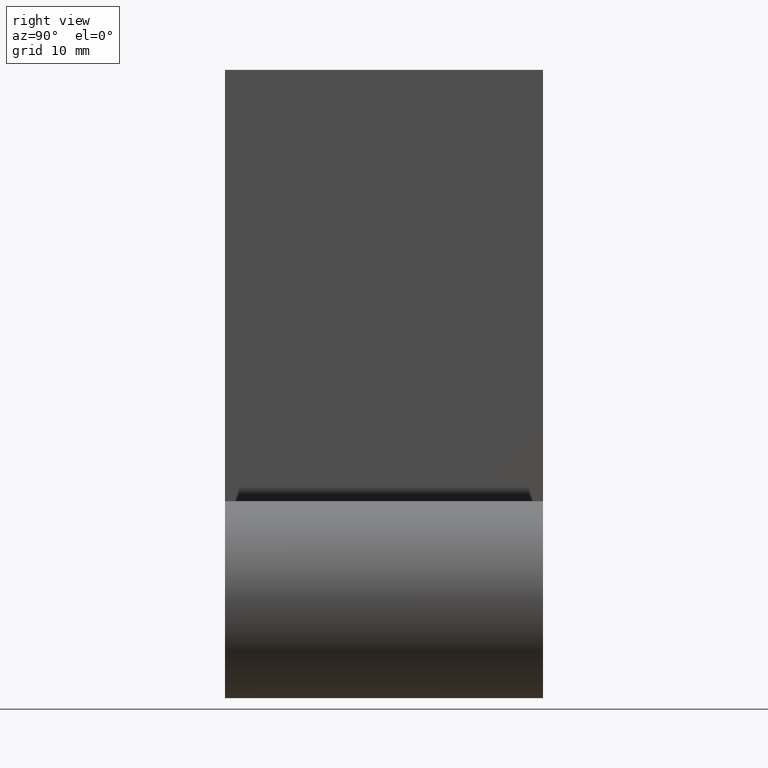
[diagram: clean part render]
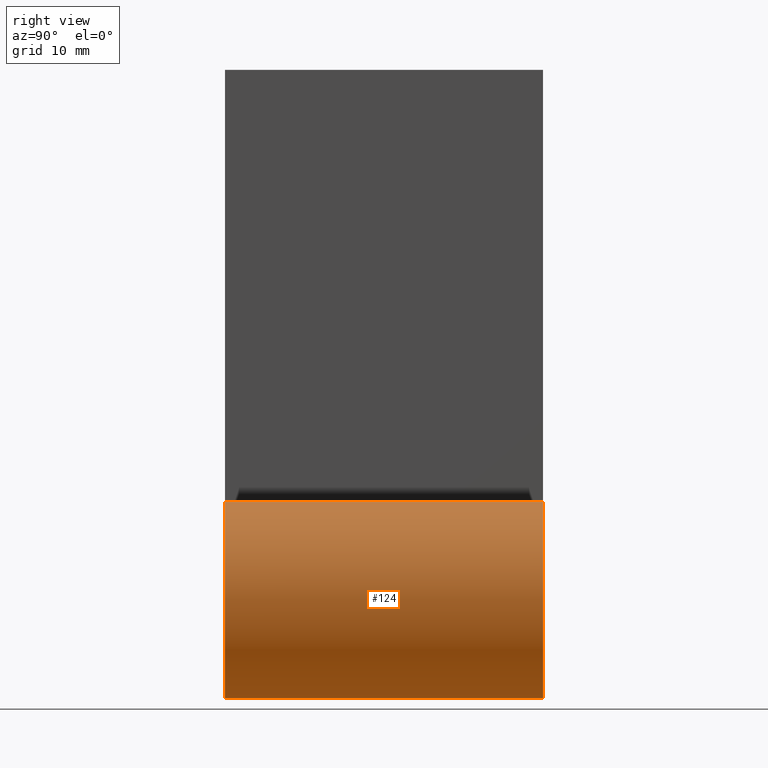
[diagram: same view with one face highlighted and labeled with its STEP entity id]
A machine part, right view. The second image highlights one B-rep face of the part: STEP entity #124.
In plain terms, the highlighted cylindrical surface (partial cylindrical patch) has radius 14 mm, axis along (-0, -1, -0).
Its self-contained STEP definition (entity closure, byte-faithful):
#124 = ADVANCED_FACE ( 'NONE', ( #1636 ), #8150, .T. ) ;
#289 = ORIENTED_EDGE ( 'NONE', *, *, #4904, .F. ) ;
#753 = DIRECTION ( 'NONE',  ( -0.000000000000000000, -1.000000000000000000, -0.000000000000000000 ) ) ;
#943 = VERTEX_POINT ( 'NONE', #2938 ) ;
#1138 = CARTESIAN_POINT ( 'NONE',  ( -7.500000000000000000, 22.50000000000000000, 11.82159041753688911 ) ) ;
#1636 = FACE_OUTER_BOUND ( 'NONE', #7451, .T. ) ;
#1658 = CARTESIAN_POINT ( 'NONE',  ( 8.673617379884035472E-15, 22.50000000000000000, 0.000000000000000000 ) ) ;
#1827 = AXIS2_PLACEMENT_3D ( 'NONE', #5263, #9525, #6972 ) ;
#1897 = VERTEX_POINT ( 'NONE', #7915 ) ;
#2237 = ORIENTED_EDGE ( 'NONE', *, *, #2890, .T. ) ;
#2393 = AXIS2_PLACEMENT_3D ( 'NONE', #1658, #10605, #10449 ) ;
#2505 = CIRCLE ( 'NONE', #1827, 14.00000000000000533 ) ;
#2610 = VECTOR ( 'NONE', #753, 1000.000000000000000 ) ;
#2621 = LINE ( 'NONE', #1138, #2753 ) ;
#2730 = ORIENTED_EDGE ( 'NONE', *, *, #8371, .F. ) ;
#2753 = VECTOR ( 'NONE', #10210, 1000.000000000000000 ) ;
#2890 = EDGE_CURVE ( 'NONE', #943, #7525, #9874, .T. ) ;
#2938 = CARTESIAN_POINT ( 'NONE',  ( -7.500000000000000000, -22.50000000000000000, 11.82159041753688911 ) ) ;
#4175 = CARTESIAN_POINT ( 'NONE',  ( -13.99999999999999645, -22.50000000000000000, 2.571758278209442450E-15 ) ) ;
#4904 = EDGE_CURVE ( 'NONE', #6011, #1897, #2505, .T. ) ;
#5263 = CARTESIAN_POINT ( 'NONE',  ( 8.673617379884035472E-15, 22.50000000000000000, 0.000000000000000000 ) ) ;
#5423 = ORIENTED_EDGE ( 'NONE', *, *, #7269, .T. ) ;
#6011 = VERTEX_POINT ( 'NONE', #10629 ) ;
#6203 = AXIS2_PLACEMENT_3D ( 'NONE', #7988, #8765, #10578 ) ;
#6465 = LINE ( 'NONE', #10416, #2610 ) ;
#6972 = DIRECTION ( 'NONE',  ( 0.000000000000000000, 0.000000000000000000, -1.000000000000000000 ) ) ;
#7269 = EDGE_CURVE ( 'NONE', #6011, #943, #2621, .T. ) ;
#7451 = EDGE_LOOP ( 'NONE', ( #2237, #2730, #289, #5423 ) ) ;
#7525 = VERTEX_POINT ( 'NONE', #4175 ) ;
#7915 = CARTESIAN_POINT ( 'NONE',  ( -13.99999999999999645, 22.50000000000000000, 2.571758278209442450E-15 ) ) ;
#7988 = CARTESIAN_POINT ( 'NONE',  ( 8.673617379884035472E-15, -22.50000000000000000, 0.000000000000000000 ) ) ;
#8150 = CYLINDRICAL_SURFACE ( 'NONE', #2393, 14.00000000000000533 ) ;
#8371 = EDGE_CURVE ( 'NONE', #1897, #7525, #6465, .T. ) ;
#8765 = DIRECTION ( 'NONE',  ( 0.000000000000000000, 1.000000000000000000, -0.000000000000000000 ) ) ;
#9525 = DIRECTION ( 'NONE',  ( 0.000000000000000000, 1.000000000000000000, -0.000000000000000000 ) ) ;
#9874 = CIRCLE ( 'NONE', #6203, 14.00000000000000533 ) ;
#10210 = DIRECTION ( 'NONE',  ( -0.000000000000000000, -1.000000000000000000, -0.000000000000000000 ) ) ;
#10416 = CARTESIAN_POINT ( 'NONE',  ( -13.99999999999999645, 22.50000000000000000, 2.571758278209442450E-15 ) ) ;
#10449 = DIRECTION ( 'NONE',  ( 0.000000000000000000, 0.000000000000000000, -1.000000000000000000 ) ) ;
#10578 = DIRECTION ( 'NONE',  ( 0.000000000000000000, 0.000000000000000000, -1.000000000000000000 ) ) ;
#10605 = DIRECTION ( 'NONE',  ( -0.000000000000000000, -1.000000000000000000, -0.000000000000000000 ) ) ;
#10629 = CARTESIAN_POINT ( 'NONE',  ( -7.500000000000000000, 22.50000000000000000, 11.82159041753688911 ) ) ;